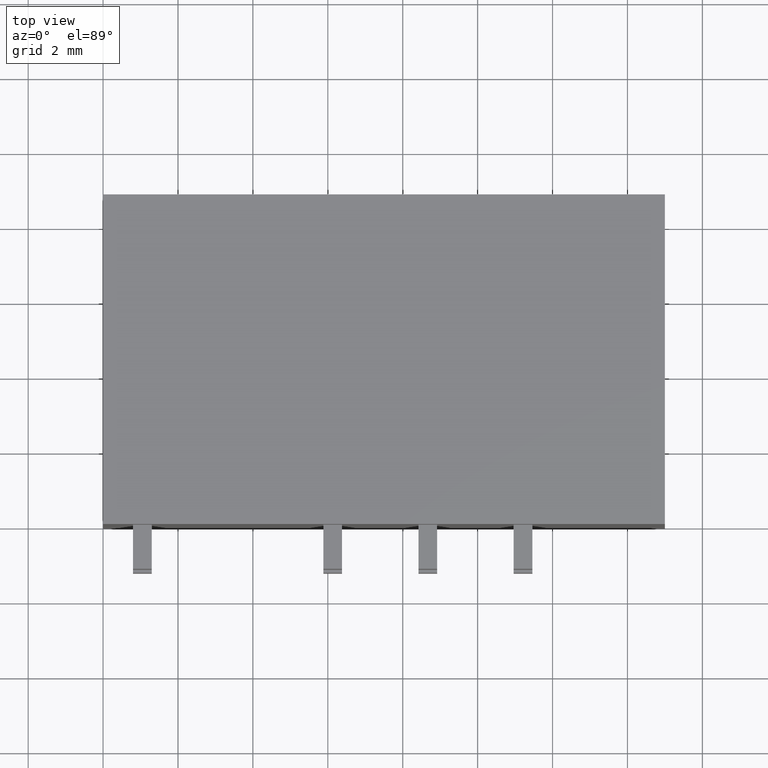
[diagram: clean part render]
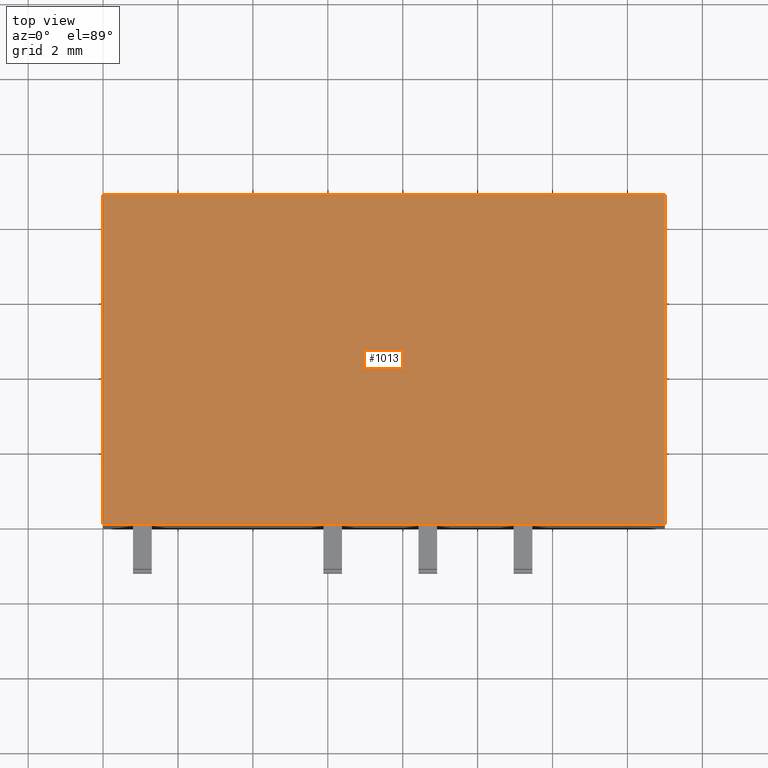
[diagram: same view with one face highlighted and labeled with its STEP entity id]
A machine part, top view. The second image highlights one B-rep face of the part: STEP entity #1013.
In plain terms, the highlighted planar face has unit normal (0, 0, -1).
Its self-contained STEP definition (entity closure, byte-faithful):
#157 = CARTESIAN_POINT ( 'NONE',  ( 15.00000000000000000, 8.800000000000000700, 0.0000000000000000000 ) ) ;
#269 = CARTESIAN_POINT ( 'NONE',  ( 0.0000000000000000000, 8.800000000000000700, 0.0000000000000000000 ) ) ;
#306 = ORIENTED_EDGE ( 'NONE', *, *, #3655, .T. ) ;
#344 = ORIENTED_EDGE ( 'NONE', *, *, #1285, .F. ) ;
#423 = VECTOR ( 'NONE', #2232, 1000.000000000000000 ) ;
#424 = CARTESIAN_POINT ( 'NONE',  ( 0.0000000000000000000, 8.800000000000000700, 0.0000000000000000000 ) ) ;
#595 = EDGE_CURVE ( 'NONE', #4438, #5215, #666, .T. ) ;
#666 = LINE ( 'NONE', #1792, #423 ) ;
#737 = EDGE_LOOP ( 'NONE', ( #5021, #1983, #344, #306 ) ) ;
#777 = VECTOR ( 'NONE', #4113, 1000.000000000000000 ) ;
#1013 = ADVANCED_FACE ( 'NONE', ( #4901 ), #3279, .F. ) ;
#1104 = CARTESIAN_POINT ( 'NONE',  ( 0.0000000000000000000, 0.0000000000000000000, 0.0000000000000000000 ) ) ;
#1245 = VERTEX_POINT ( 'NONE', #1104 ) ;
#1261 = EDGE_CURVE ( 'NONE', #1245, #5215, #2383, .T. ) ;
#1285 = EDGE_CURVE ( 'NONE', #1740, #4438, #2570, .T. ) ;
#1290 = VECTOR ( 'NONE', #2802, 1000.000000000000000 ) ;
#1670 = DIRECTION ( 'NONE',  ( -1.000000000000000000, 0.0000000000000000000, -0.0000000000000000000 ) ) ;
#1740 = VERTEX_POINT ( 'NONE', #269 ) ;
#1792 = CARTESIAN_POINT ( 'NONE',  ( 15.00000000000000000, 8.800000000000000700, 0.0000000000000000000 ) ) ;
#1845 = LINE ( 'NONE', #3961, #1987 ) ;
#1867 = AXIS2_PLACEMENT_3D ( 'NONE', #424, #3731, #1670 ) ;
#1983 = ORIENTED_EDGE ( 'NONE', *, *, #595, .F. ) ;
#1987 = VECTOR ( 'NONE', #2724, 1000.000000000000000 ) ;
#2232 = DIRECTION ( 'NONE',  ( -0.0000000000000000000, -1.000000000000000000, -0.0000000000000000000 ) ) ;
#2325 = CARTESIAN_POINT ( 'NONE',  ( 15.00000000000000000, 0.0000000000000000000, 0.0000000000000000000 ) ) ;
#2383 = LINE ( 'NONE', #4071, #777 ) ;
#2570 = LINE ( 'NONE', #3216, #1290 ) ;
#2724 = DIRECTION ( 'NONE',  ( -0.0000000000000000000, -1.000000000000000000, -0.0000000000000000000 ) ) ;
#2802 = DIRECTION ( 'NONE',  ( 1.000000000000000000, 0.0000000000000000000, 0.0000000000000000000 ) ) ;
#3216 = CARTESIAN_POINT ( 'NONE',  ( 0.0000000000000000000, 8.800000000000000700, 0.0000000000000000000 ) ) ;
#3279 = PLANE ( 'NONE',  #1867 ) ;
#3655 = EDGE_CURVE ( 'NONE', #1740, #1245, #1845, .T. ) ;
#3731 = DIRECTION ( 'NONE',  ( 0.0000000000000000000, 0.0000000000000000000, -1.000000000000000000 ) ) ;
#3961 = CARTESIAN_POINT ( 'NONE',  ( 0.0000000000000000000, 8.800000000000000700, 0.0000000000000000000 ) ) ;
#4071 = CARTESIAN_POINT ( 'NONE',  ( 0.0000000000000000000, 0.0000000000000000000, 0.0000000000000000000 ) ) ;
#4113 = DIRECTION ( 'NONE',  ( 1.000000000000000000, 0.0000000000000000000, 0.0000000000000000000 ) ) ;
#4438 = VERTEX_POINT ( 'NONE', #157 ) ;
#4901 = FACE_OUTER_BOUND ( 'NONE', #737, .T. ) ;
#5021 = ORIENTED_EDGE ( 'NONE', *, *, #1261, .T. ) ;
#5215 = VERTEX_POINT ( 'NONE', #2325 ) ;